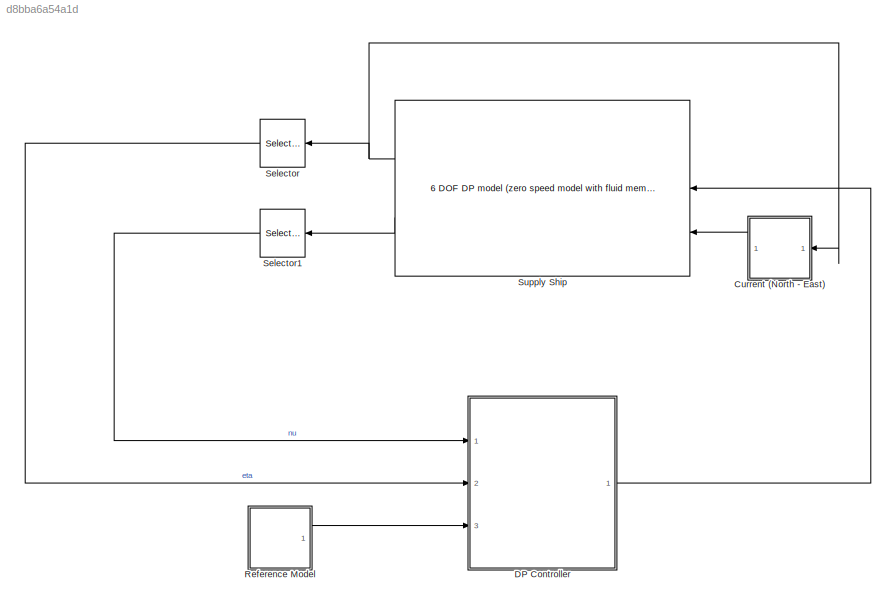
MODEL slx_d8bba6a54a1d
KIND model
CONFIG AbsTol = auto
CONFIG EnableMultiTasking = off
CONFIG FixedStep = auto
CONFIG MaxStep = auto
CONFIG MinStep = auto
CONFIG RelTol = 1e-3
CONFIG SampleTimeConstraint = Unconstrained
CONFIG Solver = VariableStepAuto
CONFIG SolverName = VariableStepAuto
CONFIG StartTime = 0.0
CONFIG StopTime = 1000
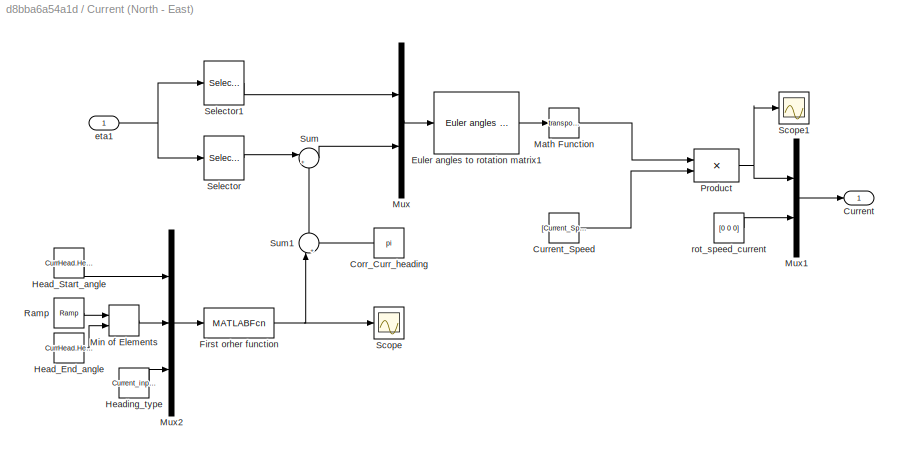
BLOCK [SubSystem] Current (North - East)
  Ports = [1, 1]
  RequestExecContextInheritance = off
BLOCK [Constant] Current (North - East)/Corr_Curr_heading
  Value = pi
BLOCK [Outport] Current (North - East)/Current
  VectorParamsAs1DForOutWhenUnconnected = off
BLOCK [Constant] Current (North - East)/Current_Speed
  Value = [Current_Speed 0 0]
BLOCK [Reference] Current (North - East)/Euler angles to rotation matrix1  REF=marine_gnc/Models/ Kinematics/Euler angles to  (lib defined in mdl_10d96c221ba8, mdl_45f1105420c6)
rotation matrix
  Ports = [1, 1]
  SourceBlock = marine_gnc/Models/ Kinematics/Euler angles to\nrotation matrix
  SourceProductName = MSS GNC
  SourceType = Euler2R
BLOCK [MATLABFcn] Current (North - East)/First orher function
  MATLABFcn = makeIfForCurrentHeading
  Ports = [1, 1]
BLOCK [Constant] Current (North - East)/Head_End_angle
  Value = CurrHead.HeadEnd
BLOCK [Constant] Current (North - East)/Head_Start_angle
  Value = CurrHead.HeadStart
BLOCK [Constant] Current (North - East)/Heading_type
  Value = Current_input_type
BLOCK [Math] Current (North - East)/Math Function
  Operator = transpose
  Ports = [1, 1]
BLOCK [MinMax] Current (North - East)/Min of Elements
  Inputs = 2
  Ports = [2, 1]
BLOCK [Mux] Current (North - East)/Mux
  DisplayOption = bar
  Inputs = 2
  Ports = [2, 1]
BLOCK [Mux] Current (North - East)/Mux1
  DisplayOption = bar
  Inputs = 2
  Ports = [2, 1]
BLOCK [Mux] Current (North - East)/Mux2
  DisplayOption = bar
  Inputs = 3
  Ports = [3, 1]
BLOCK [Product] Current (North - East)/Product
  Inputs = **
  Multiplication = Matrix(*)
  OutDataTypeStr = Inherit: Same as first input
  Ports = [2, 1]
  SaturateOnIntegerOverflow = on
BLOCK [Reference] Current (North - East)/Ramp  REF=simulink/Sources/Ramp
  Ports = [0, 1]
  SourceBlock = simulink/Sources/Ramp
  SourceProductBaseCode = SL
  SourceType = Ramp
BLOCK [Scope] Current (North - East)/Scope
  Floating = off
  NumInputPorts = 1
  Ports = [1]
  ScopeSpecificationString = Simulink.scopes.TimeScopeBlockCfg('CurrentConfiguration', extmgr.ConfigurationSet(extmgr.Configuration('Core','General UI',true),extmgr.Configuration('Core','Source UI',true),extmgr.Configuration('Sources','WiredSimulink',true),extmgr.Configuration('Visuals','Time Domain',true,'SerializedDisplays',{struct('MinYLimReal','-0.3927','MaxYLimReal','3.53429','YLabelReal','','MinYLimMag','0.00000','MaxYL...<+1368ch>
BLOCK [Scope] Current (North - East)/Scope1
  Floating = off
  NumInputPorts = 1
  Ports = [1]
  ScopeSpecificationString = Simulink.scopes.TimeScopeBlockCfg('CurrentConfiguration', extmgr.ConfigurationSet(extmgr.Configuration('Core','General UI',true),extmgr.Configuration('Core','Source UI',true),extmgr.Configuration('Sources','WiredSimulink',true,'DataLoggingVariableName','ScopeData1'),extmgr.Configuration('Visuals','Time Domain',true,'SerializedDisplays',{struct('MinYLimReal','-0.625','MaxYLimReal','0.625','YLabelRe...<+1433ch>
BLOCK [Selector] Current (North - East)/Selector
  IndexOptions = Index vector (dialog)
  Indices = [6]
  InputPortWidth = 6
  OutputSizes = 1
  Ports = [1, 1]
BLOCK [Selector] Current (North - East)/Selector1
  IndexOptions = Index vector (dialog)
  Indices = [4 5]
  InputPortWidth = 6
  OutputSizes = 1
  Ports = [1, 1]
BLOCK [Sum] Current (North - East)/Sum
  Inputs = |+-
  Ports = [2, 1]
BLOCK [Sum] Current (North - East)/Sum1
  Inputs = |++
  NameLocation = right
  Ports = [2, 1]
BLOCK [Inport] Current (North - East)/eta1
BLOCK [Constant] Current (North - East)/rot_speed_current
  Value = [0 0 0]
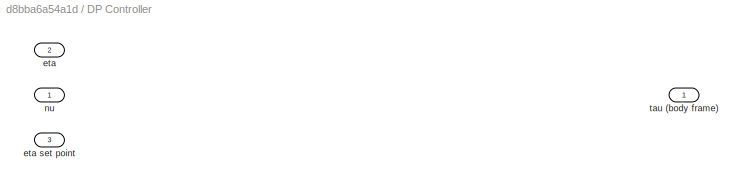
BLOCK [SubSystem] DP Controller
  Ports = [3, 1]
  RequestExecContextInheritance = off
BLOCK [Inport] DP Controller/eta
  Port = 2
BLOCK [Inport] DP Controller/eta set point
  Port = 3
BLOCK [Inport] DP Controller/nu
BLOCK [Outport] DP Controller/tau (body frame)
  VectorParamsAs1DForOutWhenUnconnected = off
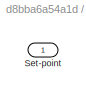
BLOCK [SubSystem] Reference Model
  Ports = [0, 1]
  RequestExecContextInheritance = off
BLOCK [Outport] Reference Model/Set-point
  VectorParamsAs1DForOutWhenUnconnected = off
BLOCK [Selector] Selector
  IndexOptions = Index vector (dialog)
  Indices = [1 2 6]
  InputPortWidth = 6
  NameLocation = top
  OutputSizes = 1
  Ports = [1, 1]
BLOCK [Selector] Selector1
  IndexOptions = Index vector (dialog)
  Indices = [1 2 6]
  InputPortWidth = 6
  NameLocation = top
  OutputSizes = 1
  Ports = [1, 1]
BLOCK [Reference] Supply Ship  REF=marine_hydro/Hydro Library/6 DOF DP model
 (zero speed model with fluid memory)
  Ports = [3, 2]
  SourceBlock = marine_hydro/Hydro Library/6 DOF DP model\n (zero speed model with fluid memory)
  SourceProductName = MSS Hydro
  SourceType = 6 DOF zero speed model
LINE Current (North - East)/Corr_Curr_heading:1 -> Current (North - East)/Sum1:2
LINE Current (North - East)/Current_Speed:1 -> Current (North - East)/Product:2
LINE Current (North - East)/Euler angles to rotation matrix1:1 -> Current (North - East)/Math Function:1
NET Current (North - East)/First orher function:1 -> Current (North - East)/Scope:1, Current (North - East)/Sum1:1
LINE Current (North - East)/Head_End_angle:1 -> Current (North - East)/Min of Elements:2
LINE Current (North - East)/Head_Start_angle:1 -> Current (North - East)/Mux2:1
LINE Current (North - East)/Heading_type:1 -> Current (North - East)/Mux2:3
LINE Current (North - East)/Math Function:1 -> Current (North - East)/Product:1
LINE Current (North - East)/Min of Elements:1 -> Current (North - East)/Mux2:2
LINE Current (North - East)/Mux1:1 -> Current (North - East)/Current:1
LINE Current (North - East)/Mux2:1 -> Current (North - East)/First orher function:1
LINE Current (North - East)/Mux:1 -> Current (North - East)/Euler angles to rotation matrix1:1
NET Current (North - East)/Product:1 -> Current (North - East)/Mux1:1, Current (North - East)/Scope1:1
LINE Current (North - East)/Ramp:1 -> Current (North - East)/Min of Elements:1
LINE Current (North - East)/Selector1:1 -> Current (North - East)/Mux:1
LINE Current (North - East)/Selector:1 -> Current (North - East)/Sum:1
LINE Current (North - East)/Sum1:1 -> Current (North - East)/Sum:2
LINE Current (North - East)/Sum:1 -> Current (North - East)/Mux:2
NET Current (North - East)/eta1:1 -> Current (North - East)/Selector1:1, Current (North - East)/Selector:1
LINE Current (North - East)/rot_speed_current:1 -> Current (North - East)/Mux1:2
LINE Current (North - East):1 -> Supply Ship:3
LINE DP Controller:1 -> Supply Ship:2
LINE Reference Model:1 -> DP Controller:3
LINE Selector1:1 -> DP Controller:1
LINE Selector:1 -> DP Controller:2
NET Supply Ship:1 -> Current (North - East):1, Selector:1
LINE Supply Ship:2 -> Selector1:1
note: NET lines group one-source signal fan-out (src -> all destinations, sorted); 1:1 wires keep LINE
